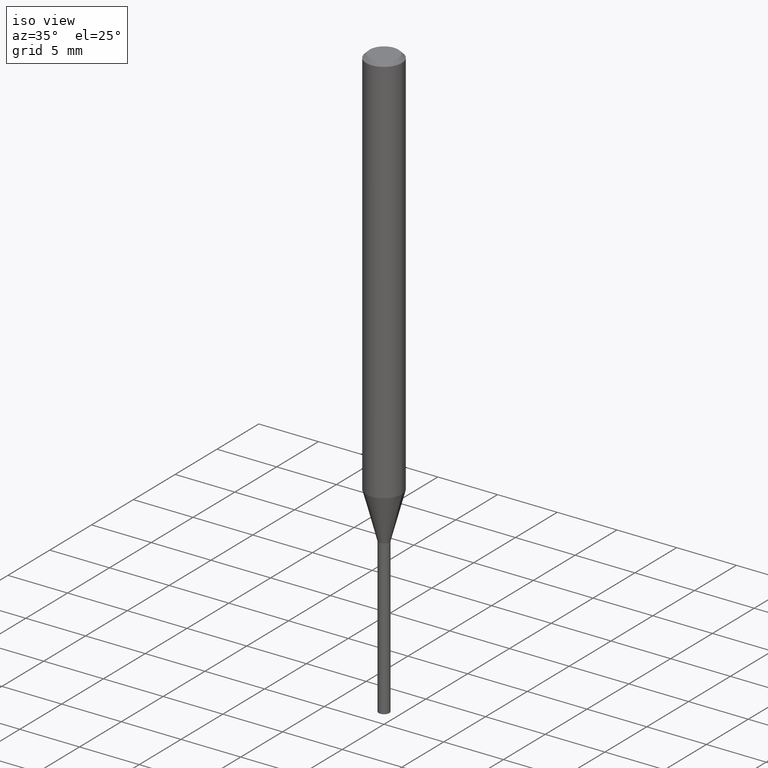
[diagram: clean part render]
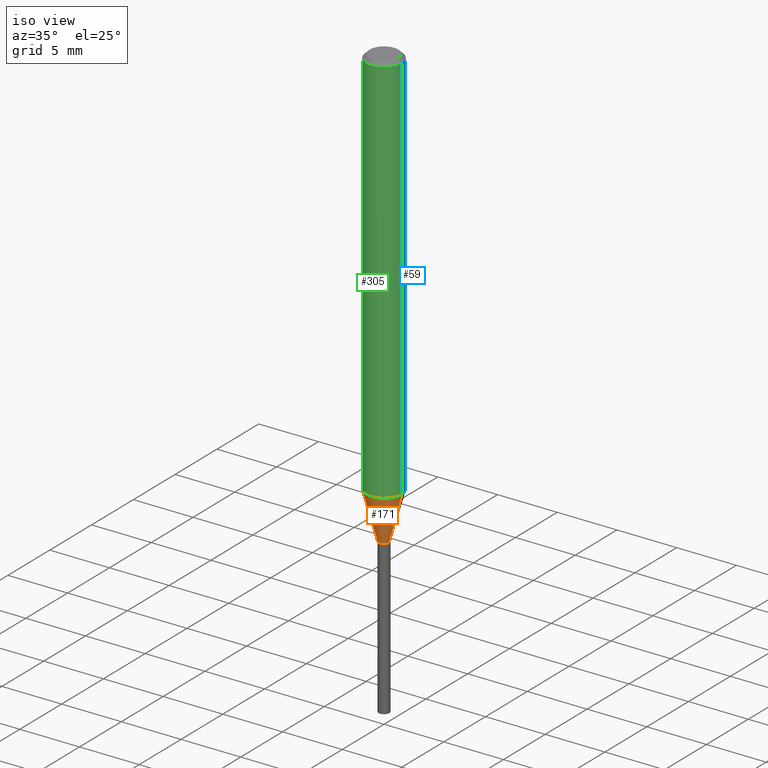
[diagram: same view with three faces highlighted in distinct colors, each labeled with its STEP entity id]
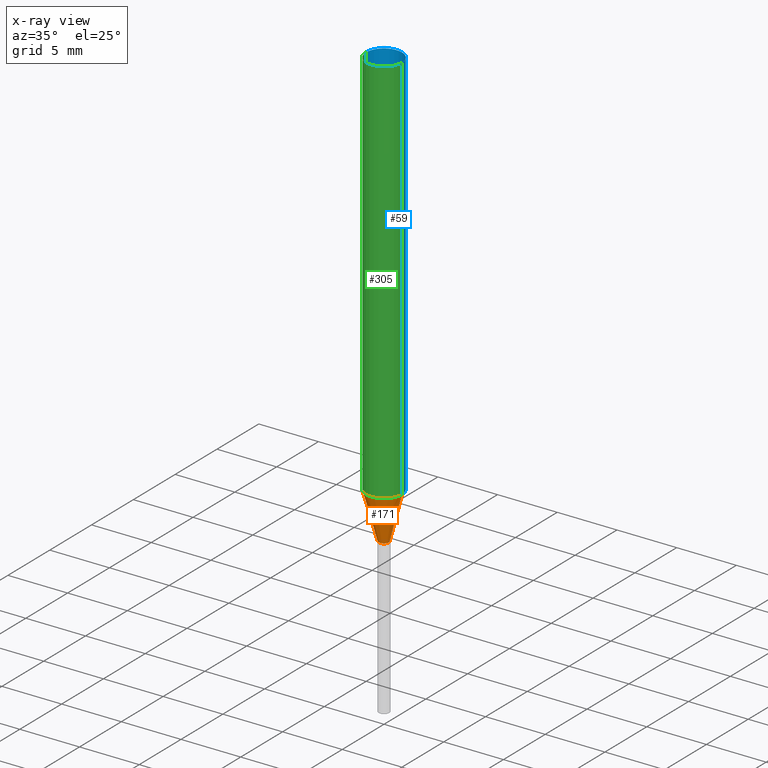
[diagram: x-ray of the same camera — body ghosted, the three highlighted faces saturated]
A machine part, iso view with three faces highlighted in distinct colors.
The next image is the same camera in x-ray (body ghosted, the three faces saturated) — at least one of them is partly hidden behind the body in this view.
Their STEP definitions:

[orange] entity #171 — the highlighted conical surface has half-angle 15 deg.
#1 = EDGE_CURVE ( 'NONE', #19, #268, #9, .T. ) ;
#4 = ORIENTED_EDGE ( 'NONE', *, *, #312, .F. ) ;
#5 = DIRECTION ( 'NONE',  ( 1.000000000000000000, -6.982962677686254089E-15, 0.000000000000000000 ) ) ;
#9 = CIRCLE ( 'NONE', #346, 0.01770000000000004556 ) ;
#19 = VERTEX_POINT ( 'NONE', #204 ) ;
#43 = CARTESIAN_POINT ( 'NONE',  ( 0.01770000000000004556, -5.191134454591988905E-15, -1.451400000000000023 ) ) ;
#71 = DIRECTION ( 'NONE',  ( 1.000000000000000000, -6.982962677686254089E-15, 0.000000000000000000 ) ) ;
#75 = VECTOR ( 'NONE', #345, 39.37007874015748854 ) ;
#83 = VECTOR ( 'NONE', #243, 39.37007874015748854 ) ;
#87 = CARTESIAN_POINT ( 'NONE',  ( 3.549353425297106788E-29, -5.067536015196941719E-15, -1.451400000000000023 ) ) ;
#100 = LINE ( 'NONE', #288, #83 ) ;
#107 = CARTESIAN_POINT ( 'NONE',  ( -0.05905000000000015098, -4.109154078958125547E-15, -1.297079699107026807 ) ) ;
#116 = CARTESIAN_POINT ( 'NONE',  ( 3.549353425297106788E-29, -5.067536015196941719E-15, -1.451400000000000023 ) ) ;
#122 = DIRECTION ( 'NONE',  ( 1.000000000000000000, -6.982962677686271444E-15, 0.000000000000000000 ) ) ;
#171 = ADVANCED_FACE ( 'NONE', ( #333 ), #237, .T. ) ;
#191 = DIRECTION ( 'NONE',  ( -2.445468806185136597E-29, 3.491481338843145583E-15, 1.000000000000000000 ) ) ;
#193 = VERTEX_POINT ( 'NONE', #107 ) ;
#204 = CARTESIAN_POINT ( 'NONE',  ( -0.01770000000000004556, -4.950149506180627644E-15, -1.451400000000000023 ) ) ;
#206 = ORIENTED_EDGE ( 'NONE', *, *, #455, .F. ) ;
#212 = DIRECTION ( 'NONE',  ( -2.445468806185136597E-29, 3.491481338843145583E-15, 1.000000000000000000 ) ) ;
#222 = VERTEX_POINT ( 'NONE', #282 ) ;
#227 = CARTESIAN_POINT ( 'NONE',  ( 0.01770000000000004556, -5.191134454591988905E-15, -1.451400000000000023 ) ) ;
#237 = CONICAL_SURFACE ( 'NONE', #252, 0.01770000000000004556, 0.2617993877991498519 ) ;
#243 = DIRECTION ( 'NONE',  ( -0.2588190451025211281, 5.211531920934547886E-15, 0.9659258262890679791 ) ) ;
#252 = AXIS2_PLACEMENT_3D ( 'NONE', #116, #212, #71 ) ;
#264 = EDGE_LOOP ( 'NONE', ( #206, #422, #334, #4 ) ) ;
#268 = VERTEX_POINT ( 'NONE', #227 ) ;
#274 = LINE ( 'NONE', #43, #75 ) ;
#282 = CARTESIAN_POINT ( 'NONE',  ( 0.05905000000000015098, -4.941073510541841537E-15, -1.297079699107026807 ) ) ;
#288 = CARTESIAN_POINT ( 'NONE',  ( -0.01770000000000004556, -4.941769950967403638E-15, -1.451400000000000023 ) ) ;
#312 = EDGE_CURVE ( 'NONE', #193, #222, #354, .T. ) ;
#333 = FACE_OUTER_BOUND ( 'NONE', #264, .T. ) ;
#334 = ORIENTED_EDGE ( 'NONE', *, *, #414, .T. ) ;
#345 = DIRECTION ( 'NONE',  ( 0.2588190451025211281, 1.565188264969622954E-15, 0.9659258262890679791 ) ) ;
#346 = AXIS2_PLACEMENT_3D ( 'NONE', #87, #470, #5 ) ;
#354 = CIRCLE ( 'NONE', #410, 0.05905000000000015098 ) ;
#389 = CARTESIAN_POINT ( 'NONE',  ( 3.171967943302237330E-29, -4.528729564424465828E-15, -1.297079699107026807 ) ) ;
#410 = AXIS2_PLACEMENT_3D ( 'NONE', #389, #191, #122 ) ;
#414 = EDGE_CURVE ( 'NONE', #268, #222, #274, .T. ) ;
#422 = ORIENTED_EDGE ( 'NONE', *, *, #1, .T. ) ;
#455 = EDGE_CURVE ( 'NONE', #19, #193, #100, .T. ) ;
#470 = DIRECTION ( 'NONE',  ( -2.445468806185136597E-29, 3.491481338843145583E-15, 1.000000000000000000 ) ) ;

[blue] entity #59 — the highlighted cylindrical surface (edge-blend (fillet) strip) has radius 1.4999 mm, axis along (-0, 0, 1).
#27 = EDGE_CURVE ( 'NONE', #154, #189, #285, .T. ) ;
#29 = CIRCLE ( 'NONE', #377, 0.05905000000000015098 ) ;
#31 = EDGE_CURVE ( 'NONE', #193, #189, #244, .T. ) ;
#56 = DIRECTION ( 'NONE',  ( 1.000000000000000000, -6.982962677686267499E-15, 4.876176775795936353E-29 ) ) ;
#59 = ADVANCED_FACE ( 'NONE', ( #394 ), #161, .T. ) ;
#72 = AXIS2_PLACEMENT_3D ( 'NONE', #93, #174, #437 ) ;
#79 = DIRECTION ( 'NONE',  ( 1.000000000000000000, -6.982962677686271444E-15, 0.000000000000000000 ) ) ;
#81 = ORIENTED_EDGE ( 'NONE', *, *, #153, .F. ) ;
#93 = CARTESIAN_POINT ( 'NONE',  ( 2.888098660104664642E-31, -4.123439461173780879E-17, -0.01181000000000007565 ) ) ;
#101 = CARTESIAN_POINT ( 'NONE',  ( -0.05905000000000008159, 4.195754854663397395E-16, -2.904631170795525745E-30 ) ) ;
#107 = CARTESIAN_POINT ( 'NONE',  ( -0.05905000000000015098, -4.109154078958125547E-15, -1.297079699107026807 ) ) ;
#146 = DIRECTION ( 'NONE',  ( -2.445468806185136597E-29, 3.491481338843145583E-15, 1.000000000000000000 ) ) ;
#153 = EDGE_CURVE ( 'NONE', #222, #154, #155, .T. ) ;
#154 = VERTEX_POINT ( 'NONE', #186 ) ;
#155 = LINE ( 'NONE', #447, #210 ) ;
#161 = CYLINDRICAL_SURFACE ( 'NONE', #405, 0.05905000000000008159 ) ;
#174 = DIRECTION ( 'NONE',  ( -2.445468806185136597E-29, 3.491481338843145583E-15, 1.000000000000000000 ) ) ;
#186 = CARTESIAN_POINT ( 'NONE',  ( 0.05905000000000000526, -4.535783407291119586E-16, -0.01181000000000007565 ) ) ;
#189 = VERTEX_POINT ( 'NONE', #482 ) ;
#193 = VERTEX_POINT ( 'NONE', #107 ) ;
#210 = VECTOR ( 'NONE', #456, 39.37007874015748143 ) ;
#222 = VERTEX_POINT ( 'NONE', #282 ) ;
#232 = DIRECTION ( 'NONE',  ( -2.445468806185136597E-29, 3.491481338843145583E-15, 1.000000000000000000 ) ) ;
#234 = EDGE_CURVE ( 'NONE', #222, #193, #29, .T. ) ;
#236 = CARTESIAN_POINT ( 'NONE',  ( 0.000000000000000000, 0.000000000000000000, 0.000000000000000000 ) ) ;
#244 = LINE ( 'NONE', #101, #246 ) ;
#246 = VECTOR ( 'NONE', #406, 39.37007874015748143 ) ;
#282 = CARTESIAN_POINT ( 'NONE',  ( 0.05905000000000015098, -4.941073510541841537E-15, -1.297079699107026807 ) ) ;
#285 = CIRCLE ( 'NONE', #72, 0.05905000000000000526 ) ;
#302 = ORIENTED_EDGE ( 'NONE', *, *, #27, .F. ) ;
#377 = AXIS2_PLACEMENT_3D ( 'NONE', #464, #232, #79 ) ;
#394 = FACE_OUTER_BOUND ( 'NONE', #458, .T. ) ;
#405 = AXIS2_PLACEMENT_3D ( 'NONE', #236, #146, #56 ) ;
#406 = DIRECTION ( 'NONE',  ( -2.445468806185136877E-29, 3.491481338843145188E-15, 1.000000000000000000 ) ) ;
#437 = DIRECTION ( 'NONE',  ( 1.000000000000000000, -6.982962677686268288E-15, 0.000000000000000000 ) ) ;
#447 = CARTESIAN_POINT ( 'NONE',  ( 0.05905000000000008159, -4.123439461173746736E-16, 2.879382386107504424E-30 ) ) ;
#448 = ORIENTED_EDGE ( 'NONE', *, *, #234, .T. ) ;
#456 = DIRECTION ( 'NONE',  ( -2.445468806185136877E-29, 3.491481338843145188E-15, 1.000000000000000000 ) ) ;
#457 = ORIENTED_EDGE ( 'NONE', *, *, #31, .T. ) ;
#458 = EDGE_LOOP ( 'NONE', ( #448, #457, #302, #81 ) ) ;
#464 = CARTESIAN_POINT ( 'NONE',  ( 3.171967943302237330E-29, -4.528729564424465828E-15, -1.297079699107026807 ) ) ;
#482 = CARTESIAN_POINT ( 'NONE',  ( -0.05905000000000000526, -1.865406494051760708E-15, -0.01181000000000007565 ) ) ;

[green] entity #305 — the highlighted cylindrical surface (edge-blend (fillet) strip) has radius 1.4999 mm, axis along (-0, 0, 1).
#31 = EDGE_CURVE ( 'NONE', #193, #189, #244, .T. ) ;
#36 = CARTESIAN_POINT ( 'NONE',  ( 0.000000000000000000, 0.000000000000000000, 0.000000000000000000 ) ) ;
#38 = ORIENTED_EDGE ( 'NONE', *, *, #255, .F. ) ;
#57 = DIRECTION ( 'NONE',  ( 1.000000000000000000, -6.982962677686268288E-15, 0.000000000000000000 ) ) ;
#67 = EDGE_LOOP ( 'NONE', ( #413, #485, #371, #38 ) ) ;
#101 = CARTESIAN_POINT ( 'NONE',  ( -0.05905000000000008159, 4.195754854663397395E-16, -2.904631170795525745E-30 ) ) ;
#107 = CARTESIAN_POINT ( 'NONE',  ( -0.05905000000000015098, -4.109154078958125547E-15, -1.297079699107026807 ) ) ;
#122 = DIRECTION ( 'NONE',  ( 1.000000000000000000, -6.982962677686271444E-15, 0.000000000000000000 ) ) ;
#150 = AXIS2_PLACEMENT_3D ( 'NONE', #36, #462, #167 ) ;
#153 = EDGE_CURVE ( 'NONE', #222, #154, #155, .T. ) ;
#154 = VERTEX_POINT ( 'NONE', #186 ) ;
#155 = LINE ( 'NONE', #447, #210 ) ;
#160 = FACE_OUTER_BOUND ( 'NONE', #67, .T. ) ;
#167 = DIRECTION ( 'NONE',  ( 1.000000000000000000, -6.982962677686267499E-15, 4.876176775795936353E-29 ) ) ;
#186 = CARTESIAN_POINT ( 'NONE',  ( 0.05905000000000000526, -4.535783407291119586E-16, -0.01181000000000007565 ) ) ;
#189 = VERTEX_POINT ( 'NONE', #482 ) ;
#191 = DIRECTION ( 'NONE',  ( -2.445468806185136597E-29, 3.491481338843145583E-15, 1.000000000000000000 ) ) ;
#193 = VERTEX_POINT ( 'NONE', #107 ) ;
#210 = VECTOR ( 'NONE', #456, 39.37007874015748143 ) ;
#222 = VERTEX_POINT ( 'NONE', #282 ) ;
#244 = LINE ( 'NONE', #101, #246 ) ;
#246 = VECTOR ( 'NONE', #406, 39.37007874015748143 ) ;
#255 = EDGE_CURVE ( 'NONE', #189, #154, #298, .T. ) ;
#282 = CARTESIAN_POINT ( 'NONE',  ( 0.05905000000000015098, -4.941073510541841537E-15, -1.297079699107026807 ) ) ;
#298 = CIRCLE ( 'NONE', #363, 0.05905000000000000526 ) ;
#303 = CYLINDRICAL_SURFACE ( 'NONE', #150, 0.05905000000000008159 ) ;
#305 = ADVANCED_FACE ( 'NONE', ( #160 ), #303, .T. ) ;
#312 = EDGE_CURVE ( 'NONE', #193, #222, #354, .T. ) ;
#354 = CIRCLE ( 'NONE', #410, 0.05905000000000015098 ) ;
#363 = AXIS2_PLACEMENT_3D ( 'NONE', #478, #441, #57 ) ;
#371 = ORIENTED_EDGE ( 'NONE', *, *, #153, .T. ) ;
#389 = CARTESIAN_POINT ( 'NONE',  ( 3.171967943302237330E-29, -4.528729564424465828E-15, -1.297079699107026807 ) ) ;
#406 = DIRECTION ( 'NONE',  ( -2.445468806185136877E-29, 3.491481338843145188E-15, 1.000000000000000000 ) ) ;
#410 = AXIS2_PLACEMENT_3D ( 'NONE', #389, #191, #122 ) ;
#413 = ORIENTED_EDGE ( 'NONE', *, *, #31, .F. ) ;
#441 = DIRECTION ( 'NONE',  ( -2.445468806185136597E-29, 3.491481338843145583E-15, 1.000000000000000000 ) ) ;
#447 = CARTESIAN_POINT ( 'NONE',  ( 0.05905000000000008159, -4.123439461173746736E-16, 2.879382386107504424E-30 ) ) ;
#456 = DIRECTION ( 'NONE',  ( -2.445468806185136877E-29, 3.491481338843145188E-15, 1.000000000000000000 ) ) ;
#462 = DIRECTION ( 'NONE',  ( -2.445468806185136597E-29, 3.491481338843145583E-15, 1.000000000000000000 ) ) ;
#478 = CARTESIAN_POINT ( 'NONE',  ( 2.888098660104664642E-31, -4.123439461173780879E-17, -0.01181000000000007565 ) ) ;
#482 = CARTESIAN_POINT ( 'NONE',  ( -0.05905000000000000526, -1.865406494051760708E-15, -0.01181000000000007565 ) ) ;
#485 = ORIENTED_EDGE ( 'NONE', *, *, #312, .T. ) ;